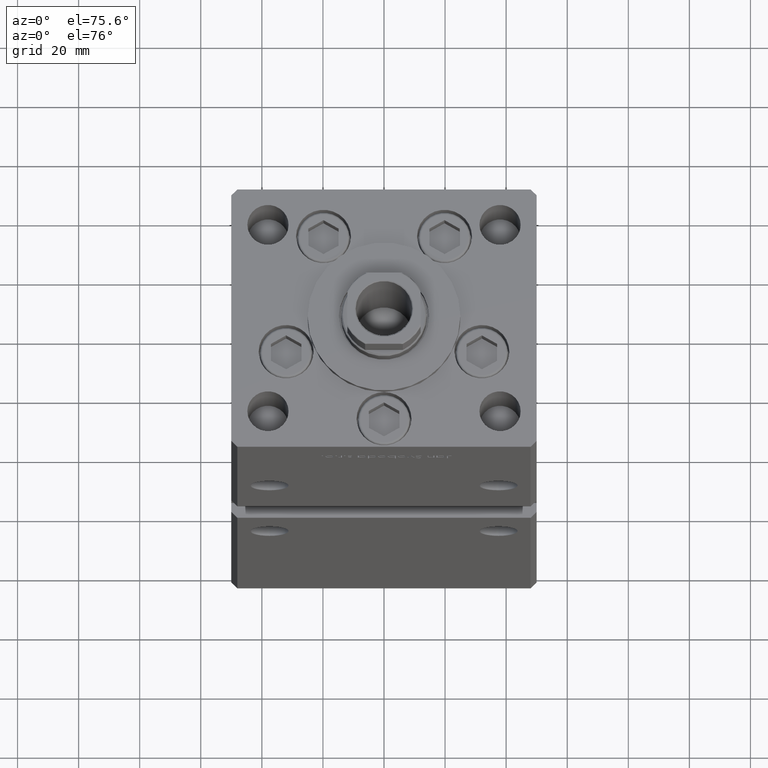
[diagram: clean part render]
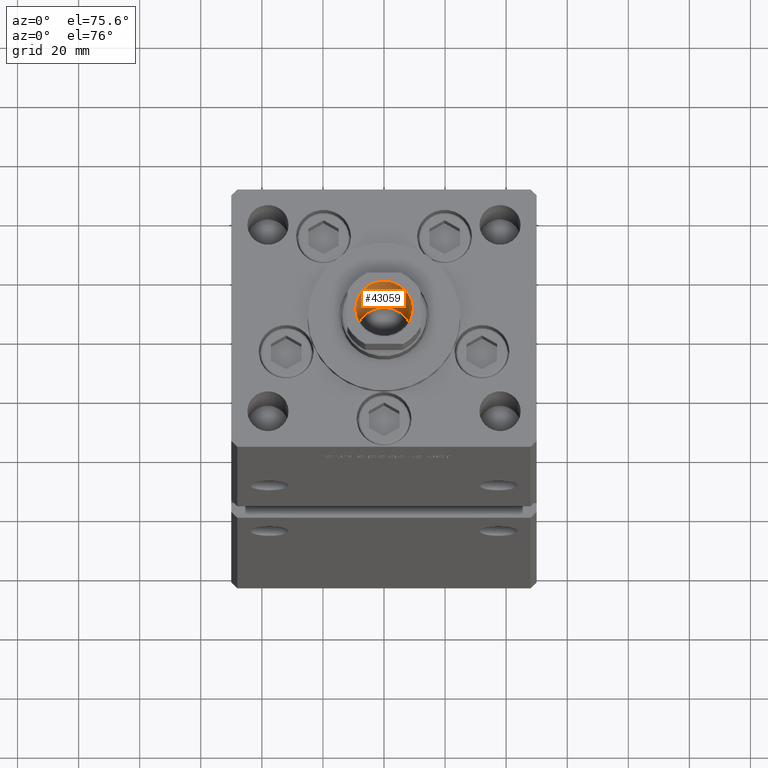
[diagram: same view with one face highlighted and labeled with its STEP entity id]
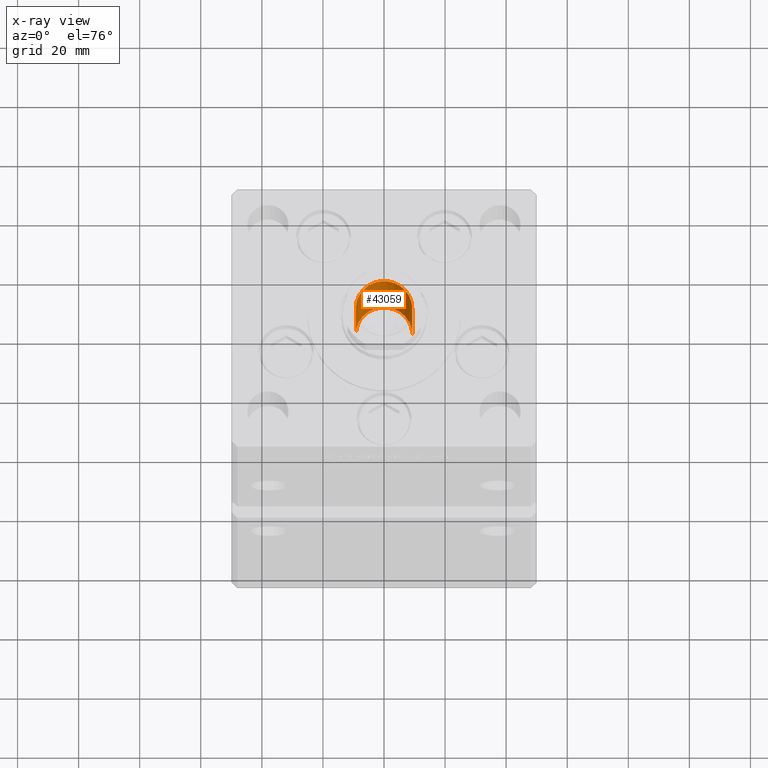
[diagram: x-ray of the same camera — body ghosted, the highlighted face saturated]
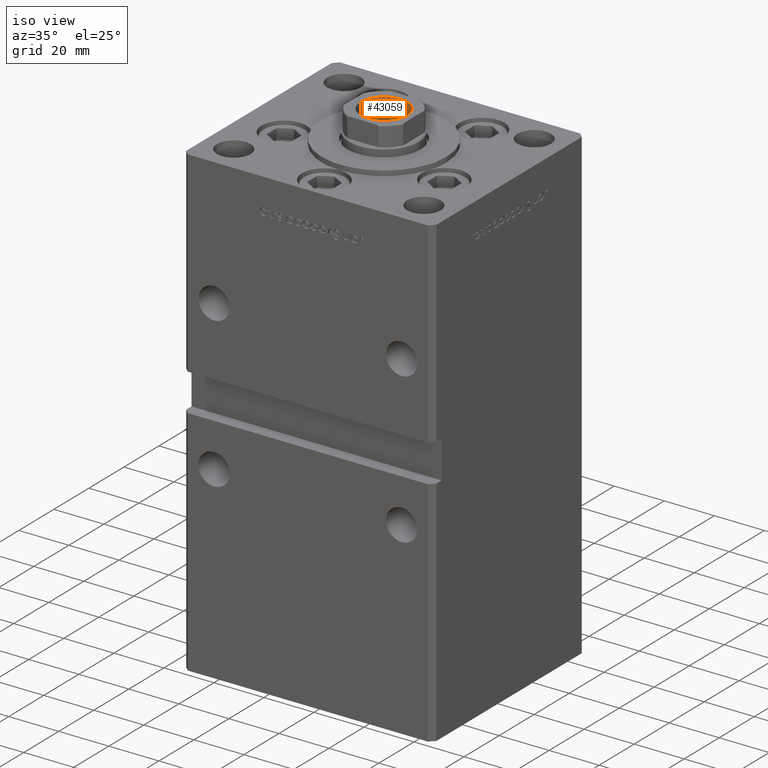
[diagram: same view with one face highlighted and labeled with its STEP entity id]
A machine part, auxiliary view. The second image highlights one B-rep face of the part: STEP entity #43059.
The next image is the same camera in x-ray: the body ghosted, the highlighted face saturated — about 2% of this face is hidden behind the body in this view.
A second angle (iso view) of the same face is appended — the face is thin or edge-on in the first view.
In plain terms, the highlighted cylindrical surface (edge-blend (fillet) strip) has radius 9.25 mm, axis along (0, 0, 1).
Its self-contained STEP definition (entity closure, byte-faithful):
#237 = CARTESIAN_POINT ( 'NONE',  ( 9.249999999999994671, 0.000000000000000000, 130.2500000000000000 ) ) ;
#269 = DIRECTION ( 'NONE',  ( 0.000000000000000000, 0.000000000000000000, 1.000000000000000000 ) ) ;
#1897 = DIRECTION ( 'NONE',  ( -0.000000000000000000, -0.000000000000000000, 1.000000000000000000 ) ) ;
#4368 = CARTESIAN_POINT ( 'NONE',  ( 0.000000000000000000, 0.000000000000000000, 130.2500000000000000 ) ) ;
#4690 = EDGE_CURVE ( 'NONE', #10591, #42272, #37114, .T. ) ;
#7958 = AXIS2_PLACEMENT_3D ( 'NONE', #25001, #269, #24208 ) ;
#8231 = DIRECTION ( 'NONE',  ( -0.000000000000000000, -0.000000000000000000, 1.000000000000000000 ) ) ;
#10591 = VERTEX_POINT ( 'NONE', #237 ) ;
#10793 = ORIENTED_EDGE ( 'NONE', *, *, #29790, .F. ) ;
#12386 = DIRECTION ( 'NONE',  ( -0.000000000000000000, -0.000000000000000000, 1.000000000000000000 ) ) ;
#13108 = CIRCLE ( 'NONE', #7958, 9.249999999999996447 ) ;
#16205 = EDGE_CURVE ( 'NONE', #42272, #34649, #13108, .T. ) ;
#17154 = ORIENTED_EDGE ( 'NONE', *, *, #16205, .T. ) ;
#20453 = EDGE_CURVE ( 'NONE', #29485, #34649, #40766, .T. ) ;
#20765 = DIRECTION ( 'NONE',  ( 1.000000000000000000, 0.000000000000000000, 0.000000000000000000 ) ) ;
#20898 = EDGE_LOOP ( 'NONE', ( #29092, #10793, #26180, #17154 ) ) ;
#24208 = DIRECTION ( 'NONE',  ( 1.000000000000000000, 0.000000000000000000, 0.000000000000000000 ) ) ;
#25001 = CARTESIAN_POINT ( 'NONE',  ( 0.000000000000000000, 0.000000000000000000, 164.9499999999999886 ) ) ;
#26180 = ORIENTED_EDGE ( 'NONE', *, *, #4690, .T. ) ;
#27801 = CARTESIAN_POINT ( 'NONE',  ( -9.249999999999996447, 1.132798289211301304E-15, 164.9499999999999886 ) ) ;
#29092 = ORIENTED_EDGE ( 'NONE', *, *, #20453, .F. ) ;
#29485 = VERTEX_POINT ( 'NONE', #37234 ) ;
#29790 = EDGE_CURVE ( 'NONE', #10591, #29485, #46897, .T. ) ;
#30949 = DIRECTION ( 'NONE',  ( 1.000000000000000000, 0.000000000000000000, 0.000000000000000000 ) ) ;
#34649 = VERTEX_POINT ( 'NONE', #27801 ) ;
#37114 = LINE ( 'NONE', #45717, #46133 ) ;
#37234 = CARTESIAN_POINT ( 'NONE',  ( -9.249999999999994671, 1.132798289211300909E-15, 130.2500000000000000 ) ) ;
#37393 = AXIS2_PLACEMENT_3D ( 'NONE', #4368, #41223, #20765 ) ;
#37708 = CARTESIAN_POINT ( 'NONE',  ( 9.249999999999996447, 0.000000000000000000, 164.9499999999999886 ) ) ;
#39020 = FACE_OUTER_BOUND ( 'NONE', #20898, .T. ) ;
#40766 = LINE ( 'NONE', #52631, #51790 ) ;
#41223 = DIRECTION ( 'NONE',  ( -0.000000000000000000, -0.000000000000000000, 1.000000000000000000 ) ) ;
#42272 = VERTEX_POINT ( 'NONE', #37708 ) ;
#42796 = CYLINDRICAL_SURFACE ( 'NONE', #48496, 9.249999999999996447 ) ;
#43058 = CARTESIAN_POINT ( 'NONE',  ( 0.000000000000000000, 0.000000000000000000, 165.2500000000000000 ) ) ;
#43059 = ADVANCED_FACE ( 'NONE', ( #39020 ), #42796, .F. ) ;
#45717 = CARTESIAN_POINT ( 'NONE',  ( 9.249999999999996447, 0.000000000000000000, 165.2500000000000000 ) ) ;
#46133 = VECTOR ( 'NONE', #12386, 1000.000000000000000 ) ;
#46897 = CIRCLE ( 'NONE', #37393, 9.249999999999994671 ) ;
#48496 = AXIS2_PLACEMENT_3D ( 'NONE', #43058, #1897, #30949 ) ;
#51790 = VECTOR ( 'NONE', #8231, 1000.000000000000000 ) ;
#52631 = CARTESIAN_POINT ( 'NONE',  ( -9.249999999999996447, 1.132798289211301304E-15, 165.2500000000000000 ) ) ;